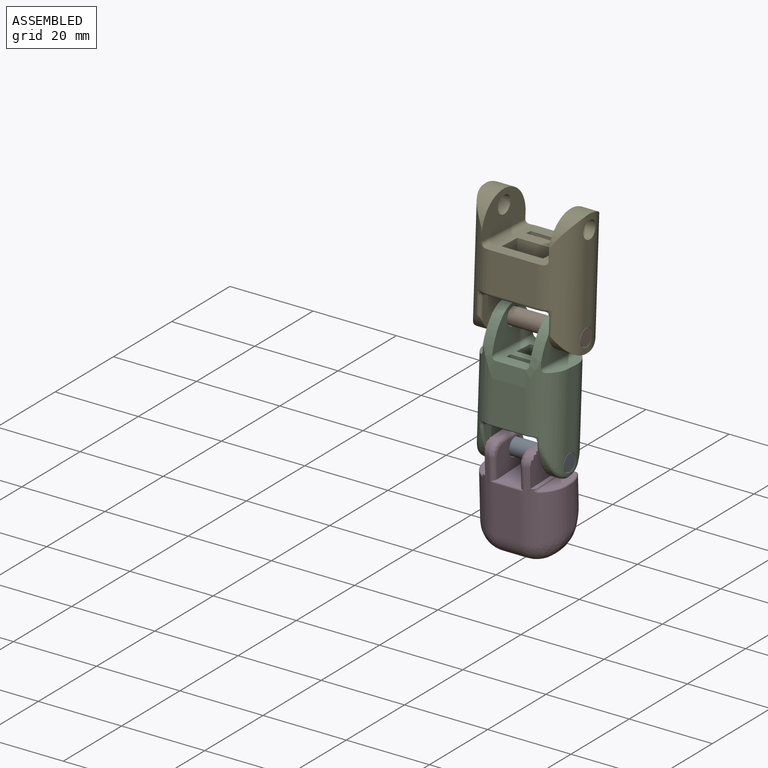
[diagram: assembled view]
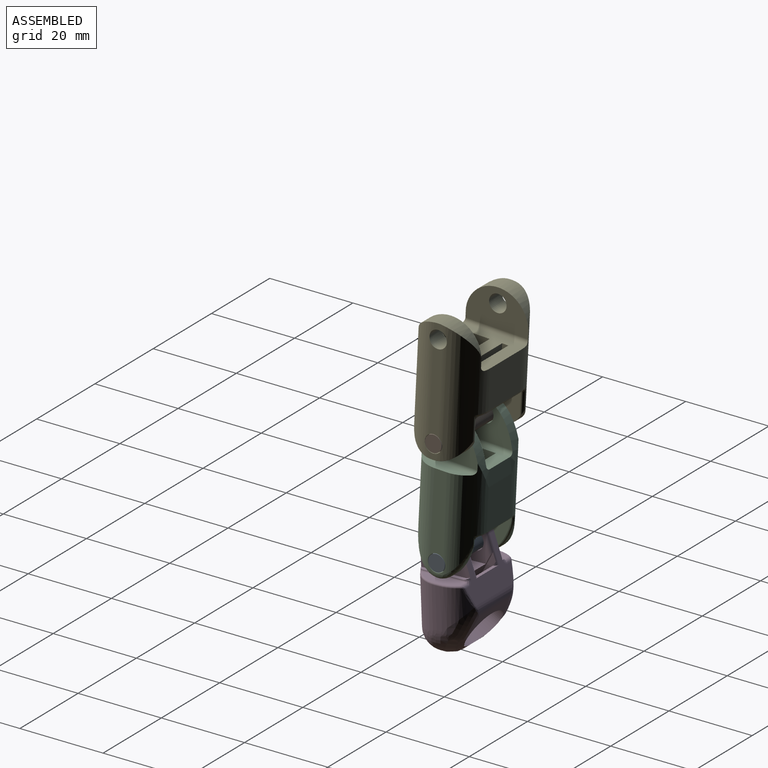
[diagram: assembled view, second angle]
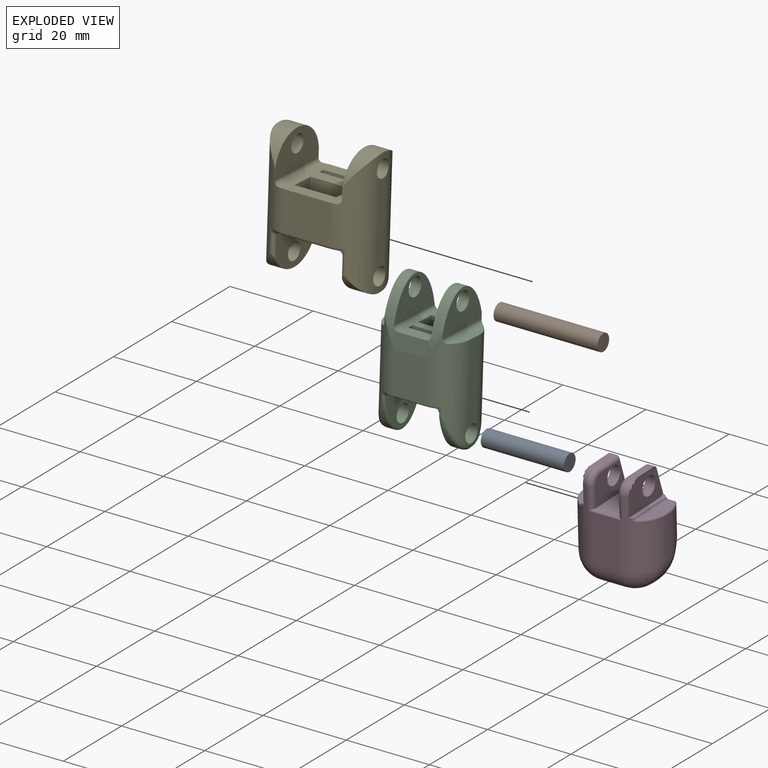
[diagram: exploded view]
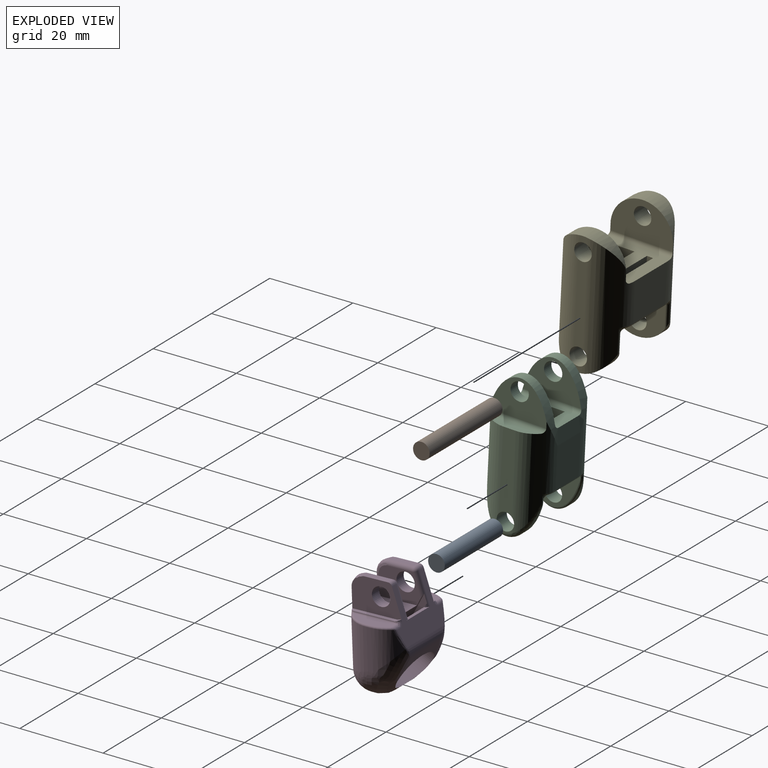
[diagram: exploded view, second angle]
ASSEMBLY  parts=5 mates=2
PART A: 3 faces, bbox 4x4x20 mm
  f0: plane 4x4mm, normal (0,0,-1), area 12.6mm2, adj f1
  f1: cylinder r=2mm len=20mm, axis (0,0,1), area 251.3mm2, adj f0,f2
  f2: plane 4x4mm, normal (0,0,1), area 12.6mm2, adj f1
PART B: 3 faces, bbox 4x4x25 mm
  f0: plane 4x4mm, normal (0,0,-1), area 12.6mm2, adj f1
  f1: cylinder r=2mm len=25mm, axis (0,0,1), area 314.2mm2, adj f0,f2
  f2: plane 4x4mm, normal (0,0,1), area 12.6mm2, adj f1
PART C: 79 faces, bbox 20.2x16.1x34.1 mm
  f0: plane 14x4.71mm, normal (1,0,0), area 65.9mm2, adj f12,f37,f62,f64
  f1: plane 14x1.5mm, normal (-1,0,0), area 21mm2, adj f12,f37,f61,f63
  f2: extruded ~15x14mm, area 201.5mm2, adj f3,f4,f5,f8,f9,f12,f50,f53
  f3: cylinder r=6mm len=25.07mm, axis (0,0,-1), area 162.5mm2, adj f2,f10,f13,f14,f16,f17,f46,f47
  f4: cylinder r=6mm len=25.07mm, axis (0,0,-1), area 162.5mm2, adj f2,f8,f10,f13,f14,f36,f38,f43
  f5: cylinder r=6mm len=25.07mm, axis (0,0,-1), area 162.5mm2, adj f2,f11,f20,f21,f27,f29,f30,f50
  f6: plane 14x1.5mm, normal (1,0,0), area 21mm2, adj f12,f37,f61,f63
  f7: plane 14x4.71mm, normal (-1,0,0), area 65.9mm2, adj f12,f37,f62,f64
  f8: plane 9.82x8mm, normal (0,-1,0), area 78.6mm2, adj f2,f4,f9,f39
  f9: cylinder r=6mm len=25.07mm, axis (0,0,-1), area 162.5mm2, adj f2,f8,f11,f20,f21,f23,f24,f40
  f10: plane 11.94x2mm, normal (0,0,1), area 18.4mm2, adj f3,f4,f14,f66
  f11: plane 11.94x2mm, normal (0,0,1), area 18.4mm2, adj f5,f9,f21,f65
  f12: plane 14.44x7mm, normal (0,0,1), area 62.6mm2, adj f0,f1,f2,f6,f7,f61,f62,f63
  f13: plane 3.1x1.13mm, normal (1,0,0), area 1.4mm2, adj f3,f4,f15,f55
  f14: plane 19.03x3mm, normal (1,0,0), area 55.8mm2, adj f3,f4,f10,f55
  f15: bspline ~4.02x1.48mm, area 5.9mm2, adj f13,f16,f32,f44
  f16: bspline ~9.08x5.66mm, area 10.3mm2, adj f3,f15,f18,f32
  f17: bspline ~0.58x0.3mm, area 0mm2, adj f3,f47,f48
  f18: bspline ~1.22x0.85mm, area 1mm2, adj f16,f19,f34,f46
  f19: plane 12.42x8.59mm, normal (-1,0,0), area 64.9mm2, adj f18,f34,f35,f36,f46,f55,f76
  f20: plane 3.1x1.13mm, normal (-1,0,0), area 1.4mm2, adj f5,f9,f22,f56
  f21: plane 19.03x3mm, normal (-1,0,0), area 55.8mm2, adj f5,f9,f11,f56
  f22: bspline ~4.02x1.48mm, area 5.9mm2, adj f20,f23,f29,f31
  f23: bspline ~9.07x5.65mm, area 10.3mm2, adj f9,f22,f25,f31
  f24: bspline ~0.58x0.3mm, area 0mm2, adj f9,f40,f41
  f25: bspline ~1.22x0.85mm, area 1mm2, adj f23,f26,f33,f42
  f26: plane 12.42x8.59mm, normal (1,0,0), area 64.9mm2, adj f25,f27,f28,f33,f42,f56,f71
  f27: cylinder r=0.46mm len=1.75mm, axis (0,0,1), area 0.7mm2, adj f5,f26,f28,f69,f70
  f28: bspline ~1.22x0.85mm, area 1mm2, adj f26,f27,f29,f33
  f29: bspline ~8.83x5.61mm, area 10.3mm2, adj f5,f22,f28,f31
  f30: bspline ~0.59x0.3mm, area 0mm2, adj f5,f51,f52
  f31: extruded ~13x7.59mm, area 24.6mm2, adj f22,f23,f29,f33
  f32: extruded ~13x7.59mm, area 24.6mm2, adj f15,f16,f34,f44
  f33: bspline ~13.15x7.94mm, area 15.1mm2, adj f25,f26,f28,f31
  f34: bspline ~13.15x7.94mm, area 15.1mm2, adj f18,f19,f32,f35
  f35: bspline ~1.22x0.85mm, area 1mm2, adj f19,f34,f36,f44
  f36: cylinder r=0.46mm len=1.75mm, axis (0,0,1), area 0.7mm2, adj f4,f19,f35,f74,f75
  f37: plane 14.08x11.27mm, normal (0,0,-1), area 116.1mm2, adj f0,f1,f6,f7,f38,f39,f40,f47
  f38: torus R=5.54mm, axis (0,0,-1), area 1.7mm2, adj f4,f37,f39,f43,f45,f74
  f39: cylinder r=0.46mm len=8mm, axis (1,0,0), area 5.8mm2, adj f8,f37,f38,f40
  f40: torus R=5.54mm, axis (0,0,-1), area 1.7mm2, adj f9,f24,f37,f39,f41,f73
  f41: plane 0.51x0.04mm, normal (-1,0,0), area 0mm2, adj f9,f24,f40
  f42: cylinder r=0.46mm len=1.75mm, axis (0,0,-1), area 0.7mm2, adj f9,f25,f26,f72,f73
  f43: plane 0.51x0.04mm, normal (1,0,0), area 0mm2, adj f4,f38,f45
  f44: bspline ~9.12x5.66mm, area 10.3mm2, adj f4,f15,f32,f35
  f45: bspline ~0.59x0.3mm, area 0mm2, adj f4,f38,f43
  f46: cylinder r=0.46mm len=1.75mm, axis (0,0,-1), area 0.7mm2, adj f3,f18,f19,f77,f78
  f47: torus R=5.54mm, axis (0,0,-1), area 1.7mm2, adj f3,f17,f37,f48,f49,f78
  f48: plane 0.51x0.04mm, normal (1,0,0), area 0mm2, adj f3,f17,f47
  f49: cylinder r=0.46mm len=8mm, axis (-1,0,0), area 5.8mm2, adj f37,f47,f50,f51
  f50: plane 9.82x8mm, normal (0,1,0), area 78.6mm2, adj f2,f3,f5,f49
  f51: torus R=5.54mm, axis (0,0,-1), area 1.7mm2, adj f5,f30,f37,f49,f52,f69
  f52: plane 0.51x0.04mm, normal (-1,0,0), area 0mm2, adj f5,f30,f51
  f53: plane 14.17x9.03mm, normal (1,0,0), area 76.7mm2, adj f2,f59,f68
  f54: plane 14.08x8.99mm, normal (-1,0,0), area 76mm2, adj f2,f60,f67
  f55: cylinder r=2.1mm len=4.2mm, axis (-1,0,0), area 46.2mm2, adj f3,f4,f13,f14,f19
  f56: cylinder r=2.1mm len=4.2mm, axis (1,0,0), area 46.2mm2, adj f5,f9,f20,f21,f26
  f57: plane 13.39x8.99mm, normal (-1,0,0), area 76.4mm2, adj f2,f5,f9,f59,f65
  f58: plane 13.39x8.99mm, normal (1,0,0), area 76.4mm2, adj f2,f3,f4,f60,f66
  f59: cylinder r=2.2mm len=4.4mm, axis (1,0,0), area 34.6mm2, adj f53,f57
  f60: cylinder r=2.2mm len=4.4mm, axis (-1,0,0), area 34.6mm2, adj f54,f58
  f61: plane 14x6.2mm, normal (0,-1,0), area 86.8mm2, adj f1,f6,f12,f37
  f62: plane 14x6.2mm, normal (0,1,0), area 86.8mm2, adj f0,f7,f12,f37
  f63: plane 14x6.2mm, normal (0,1,0), area 86.8mm2, adj f1,f6,f12,f37
  f64: plane 14x6.2mm, normal (0,-1,0), area 86.8mm2, adj f0,f7,f12,f37
  f65: cylinder r=1mm len=13.39mm, axis (0,-1,0), area 19.9mm2, adj f5,f9,f11,f57
  f66: cylinder r=1mm len=13.39mm, axis (0,-1,0), area 19.9mm2, adj f3,f4,f10,f58
  f67: cylinder r=1mm len=14.44mm, axis (0,1,0), area 22.4mm2, adj f2,f12,f54
  f68: cylinder r=1mm len=14.44mm, axis (0,-1,0), area 22.4mm2, adj f2,f12,f53
  f69: bspline ~1.61x1.46mm, area 0.6mm2, adj f27,f51,f70
  f70: torus R=1.46mm, axis (0,0,-1), area 0.6mm2, adj f27,f37,f69,f71
  f71: cylinder r=1mm len=12.37mm, axis (0,1,0), area 19.4mm2, adj f26,f37,f70,f72
  f72: torus R=1.46mm, axis (0,0,-1), area 0.6mm2, adj f37,f42,f71,f73
  f73: bspline ~1.57x1.46mm, area 0.5mm2, adj f40,f42,f72
  f74: bspline ~1.57x1.46mm, area 0.6mm2, adj f36,f38,f75
  f75: torus R=1.46mm, axis (0,0,-1), area 0.6mm2, adj f36,f37,f74,f76
  f76: cylinder r=1mm len=12.37mm, axis (0,-1,0), area 19.4mm2, adj f19,f37,f75,f77
  f77: torus R=1.46mm, axis (0,0,-1), area 0.6mm2, adj f37,f46,f76,f78
  f78: bspline ~1.61x1.46mm, area 0.5mm2, adj f46,f47,f77
PART D: 95 faces, bbox 22.3x16.3x26.9 mm
  f0: torus R=4mm, axis (0,0,-1), area 8mm2, adj f1,f63,f68,f91
  f1: cylinder r=7mm len=17mm, axis (0,0,-1), area 127.1mm2, adj f0,f20,f21,f23,f25,f43,f44,f69
  f2: plane 15.81x12.47mm, normal (0,0.95,0.3), area 89.4mm2, adj f3,f4,f15,f17,f18,f35,f36,f55
  f3: bspline ~1.84x1.6mm, area 1.8mm2, adj f2,f72,f73,f88
  f4: cylinder r=1mm len=7.6mm, axis (0,0.3,-0.95), area 9.7mm2, adj f2,f10,f11,f15,f66,f70,f87
  f5: plane 9.89x7.01mm, normal (1,0,0), area 47.8mm2, adj f16,f45,f75,f76,f77,f83,f94
  f6: plane 6x1.1mm, normal (0,0,-1), area 6.6mm2, adj f7,f24,f26,f49
  f7: cylinder r=4mm len=6mm, axis (1,0,0), area 18.2mm2, adj f6,f8,f9,f27
  f8: extruded ~11.96x10.54mm, area 195.1mm2, adj f7,f9,f10,f11,f12,f27,f32,f33
  f9: bspline ~7.78x7.37mm, area 38.9mm2, adj f7,f8,f33,f34,f49,f51
  f10: plane 9.36x5.52mm, normal (-1,0,0), area 13.8mm2, adj f4,f8,f11,f82,f83,f86,f87
  f11: plane 7.5x7.07mm, normal (0,-0.87,0.49), area 50.6mm2, adj f4,f8,f10,f12,f15,f77
  f12: plane 9.37x5.52mm, normal (1,0,0), area 13.8mm2, adj f8,f11,f77,f81,f83
  f13: plane 10.12x2.71mm, normal (0,0,1), area 21.6mm2, adj f17,f19,f41,f42,f44
  f14: plane 10.11x2.71mm, normal (0,0,1), area 21.6mm2, adj f58,f59,f60,f72,f73
  f15: plane 8.1x0.89mm, normal (0,0,1), area 5.2mm2, adj f2,f4,f11,f77
  f16: plane 9.61x6.5mm, normal (0,0,1), area 57.7mm2, adj f5,f21,f22,f45,f46,f69,f70,f83
  f17: cylinder r=1mm len=1.51mm, axis (-1,0,0), area 1.5mm2, adj f2,f13,f18,f39,f40
  f18: bspline ~1.84x1.6mm, area 2mm2, adj f2,f17,f19,f92
  f19: cylinder r=0.42mm len=10.32mm, axis (0,-1,0), area 6.7mm2, adj f13,f18,f20,f90
  f20: bspline ~1.82x1.29mm, area 1mm2, adj f1,f19,f44,f90
  f21: torus R=6.58mm, axis (0,0,-1), area 0.5mm2, adj f1,f16,f22,f69
  f22: cylinder r=0.42mm len=6mm, axis (-1,0,0), area 4mm2, adj f16,f21,f23,f46
  f23: plane 11.58x6mm, normal (0,-1,0), area 69.5mm2, adj f1,f22,f24,f47
  f24: cylinder r=5mm len=6mm, axis (-1,0,0), area 47.1mm2, adj f6,f23,f25,f48
  f25: bspline ~10.75x7.53mm, area 47.5mm2, adj f1,f24,f26
  f26: cylinder r=7mm len=7mm, axis (0,-1,0), area 12.5mm2, adj f6,f25,f27,f29,f43
  f27: bspline ~7.78x7.37mm, area 38.9mm2, adj f7,f8,f26,f28,f32,f33
  f28: bspline ~4.13x3.79mm, area 2.5mm2, adj f27,f29,f31,f33
  f29: sphere r=7mm, area 0.1mm2, adj f26,f28,f30
  f30: cylinder r=7mm len=9.58mm, axis (0,0,-1), area 43.6mm2, adj f29,f31,f36,f37,f40,f41,f43
  f31: bspline ~9x6.63mm, area 30.8mm2, adj f28,f30,f33,f38
  f32: cylinder r=36.41mm len=1.31mm, axis (1,0,0), area 0mm2, adj f8,f27
  f33: cylinder r=36.41mm len=12mm, axis (1,0,0), area 26.3mm2, adj f8,f9,f27,f28,f31,f35,f51,f52
  f34: cylinder r=36.41mm len=1.31mm, axis (1,0,0), area 0mm2, adj f8,f9
  f35: cylinder r=4mm len=12.53mm, axis (-1,0,0), area 31.7mm2, adj f2,f33,f37,f38,f54,f79
  f36: bspline ~5.07x2.41mm, area 3.8mm2, adj f2,f30,f37,f39
  f37: cylinder r=1mm len=0.55mm, axis (0.42,-0.27,0.87), area 0mm2, adj f30,f35,f36,f38
  f38: bspline ~3x1.82mm, area 1mm2, adj f31,f35,f37
  f39: bspline ~1.11x1mm, area 0.3mm2, adj f17,f36,f40
  f40: bspline ~0.64x0.57mm, area 0.2mm2, adj f17,f30,f39,f41
  f41: torus R=6.58mm, axis (0,0,-1), area 2.8mm2, adj f13,f30,f40,f42
  f42: cylinder r=0.42mm len=1mm, axis (0,1,0), area 0.7mm2, adj f13,f41,f43,f44
  f43: plane 9.58x1mm, normal (1,0,0), area 9.6mm2, adj f1,f26,f30,f42
  f44: torus R=6.58mm, axis (0,0,-1), area 4.3mm2, adj f1,f13,f20,f42
  f45: cylinder r=1mm len=5.42mm, axis (0,0,1), area 8.9mm2, adj f5,f16,f46,f47,f76
  f46: torus R=6.58mm, axis (0,0,-1), area 0.5mm2, adj f16,f22,f45,f47
  f47: cylinder r=7mm len=17mm, axis (0,0,-1), area 127.1mm2, adj f23,f45,f46,f48,f60,f61,f62,f78
  f48: bspline ~10.75x7.53mm, area 47.5mm2, adj f24,f47,f49
  f49: cylinder r=7mm len=7mm, axis (0,-1,0), area 12.5mm2, adj f6,f9,f48,f50,f78
  f50: sphere r=7mm, area 0.1mm2, adj f49,f51,f53
  f51: bspline ~4.13x3.79mm, area 2.5mm2, adj f9,f33,f50,f52
  f52: bspline ~9x6.63mm, area 30.8mm2, adj f33,f51,f53,f79
  f53: cylinder r=7mm len=9.58mm, axis (0,0,-1), area 43.6mm2, adj f50,f52,f54,f55,f57,f58,f78
  f54: cylinder r=1mm len=0.56mm, axis (-0.41,-0.27,0.87), area 0mm2, adj f35,f53,f55,f79
  f55: bspline ~5.08x2.41mm, area 3.8mm2, adj f2,f53,f54,f56
  f56: bspline ~1.11x1mm, area 0.3mm2, adj f55,f57,f73
  f57: bspline ~0.64x0.57mm, area 0.2mm2, adj f53,f56,f58,f73
  f58: torus R=6.58mm, axis (0,0,-1), area 2.8mm2, adj f14,f53,f57,f59
  f59: cylinder r=0.42mm len=1mm, axis (0,-1,0), area 0.7mm2, adj f14,f58,f60,f78
  f60: torus R=6.58mm, axis (0,0,-1), area 4.3mm2, adj f14,f47,f59,f61
  f61: bspline ~1.82x1.29mm, area 1.2mm2, adj f47,f60,f72,f88
  f62: torus R=4mm, axis (0,0,-1), area 8mm2, adj f47,f64,f76,f89
  f63: plane 6.16x1.45mm, normal (0,0,1), area 8.5mm2, adj f0,f65,f67,f91
  f64: plane 6.16x1.45mm, normal (0,0,1), area 8.5mm2, adj f62,f71,f75,f89
  f65: cylinder r=1mm len=1.45mm, axis (-1,0,0), area 1.8mm2, adj f2,f63,f66,f91
  f66: sphere r=1mm, area 1.3mm2, adj f4,f65,f67
  f67: cylinder r=1mm len=6.16mm, axis (0,-1,0), area 9.7mm2, adj f63,f66,f68,f70
  f68: bspline ~3.22x3.18mm, area 7mm2, adj f0,f67,f69,f70
  f69: cylinder r=1mm len=5.42mm, axis (0,0,-1), area 8.9mm2, adj f1,f16,f21,f68,f70
  f70: plane 9.89x7.01mm, normal (-1,0,0), area 47.8mm2, adj f4,f16,f67,f68,f69,f83,f86,f87
  f71: cylinder r=1mm len=1.45mm, axis (-1,0,0), area 1.8mm2, adj f2,f64,f74,f89
  f72: cylinder r=0.42mm len=10.27mm, axis (0,1,0), area 6.6mm2, adj f3,f14,f61,f88
  f73: cylinder r=1mm len=1.51mm, axis (-1,0,0), area 1.5mm2, adj f2,f3,f14,f56,f57
  f74: sphere r=1mm, area 1.3mm2, adj f71,f75,f77
  f75: cylinder r=1mm len=6.16mm, axis (0,1,0), area 9.7mm2, adj f5,f64,f74,f76
  f76: bspline ~3.22x3.18mm, area 7mm2, adj f5,f45,f62,f75
  f77: cylinder r=1mm len=7.6mm, axis (0,-0.3,0.95), area 9.7mm2, adj f2,f5,f11,f12,f15,f74,f83
  f78: plane 9.58x1mm, normal (-1,0,0), area 9.6mm2, adj f47,f49,f53,f59
  f79: bspline ~3x1.82mm, area 1mm2, adj f35,f52,f54
  f80: extruded ~11.96x4.2mm, area 16.2mm2, adj f8,f81,f82,f83
  f81: extruded ~3.5x2.57mm, area 4.4mm2, adj f8,f12,f80,f83
  f82: extruded ~3.5x2.57mm, area 4.4mm2, adj f8,f10,f80,f83
  f83: plane 15.48x12.09mm, normal (0,0.87,-0.49), area 123.9mm2, adj f5,f10,f12,f16,f70,f77,f80,f81
  f84: cylinder r=0.85mm len=3.05mm, axis (0,0.87,-0.49), area 13.6mm2, adj f83,f85
  f85: plane 1.7x1.48mm, normal (0,0.87,-0.49), area 2.3mm2, adj f84
  f86: plane 0.5x0.01mm, normal (0,0.48,0.87), area 0mm2, adj f10,f70,f83,f87
  f87: plane 1.96x1.19mm, normal (0,0.86,-0.5), area 0.9mm2, adj f4,f10,f70,f86
  f88: plane 12.27x1.32mm, normal (0,0,1), area 11.5mm2, adj f2,f3,f47,f61,f72,f89
  f89: plane 13.08x8.7mm, normal (-1,0,0), area 64.2mm2, adj f2,f47,f62,f64,f71,f88,f94
  f90: plane 10.91x1mm, normal (0,0,1), area 10.6mm2, adj f1,f19,f20,f91,f92
  f91: plane 12.98x8.7mm, normal (1,0,0), area 64mm2, adj f0,f1,f2,f63,f65,f90,f92,f93
  f92: plane 1.05x1.01mm, normal (0,-0.3,0.95), area 0.8mm2, adj f18,f90,f91
  f93: cylinder r=2.2mm len=4.4mm, axis (-1,0,0), area 33.9mm2, adj f70,f91
  f94: cylinder r=2.2mm len=4.4mm, axis (-1,0,0), area 33.9mm2, adj f5,f89
PART E: 59 faces, bbox 25x17.2x30 mm
  f0: plane 11x9.3mm, normal (0,-1,0), area 102.3mm2, adj f1,f13,f19,f27
  f1: plane 16x14.1mm, normal (0,0,1), area 155.2mm2, adj f0,f10,f13,f19,f21,f32,f39,f40
  f2: plane 15.04x9mm, normal (-1,0,0), area 97.5mm2, adj f10,f11,f13,f36,f58
  f3: plane 2x1.65mm, normal (1,0,0), area 2.9mm2, adj f6,f10,f13,f37
  f4: plane 19.31x2mm, normal (1,0,0), area 37.9mm2, adj f10,f13,f36,f37
  f5: plane 2x1.65mm, normal (1,0,0), area 2.9mm2, adj f10,f11,f13,f36
  f6: cylinder r=7.55mm len=14.19mm, axis (1,0,0), area 52.7mm2, adj f3,f8,f9,f10,f13,f34
  f7: cylinder r=7.55mm len=14.19mm, axis (1,0,0), area 42.9mm2, adj f17,f18,f22,f23,f24,f25
  f8: cylinder r=0.7mm len=7.16mm, axis (0,0,-1), area 7.4mm2, adj f6,f9,f13,f52,f53
  f9: plane 12.79x9mm, normal (-1,0,0), area 88mm2, adj f6,f8,f34,f37,f54
  f10: cylinder r=7mm len=29.87mm, axis (0,0,-1), area 226mm2, adj f1,f2,f3,f4,f5,f6,f11,f32
  f11: cylinder r=7.55mm len=15.04mm, axis (-1,0,0), area 58mm2, adj f2,f5,f10,f13
  f12: cylinder r=7.55mm len=15.04mm, axis (-1,0,0), area 58mm2, adj f16,f19,f20,f21
  f13: cylinder r=7mm len=29.87mm, axis (0,0,-1), area 226mm2, adj f0,f1,f2,f3,f4,f5,f6,f8
  f14: plane 2x0.95mm, normal (-1,0,0), area 1.5mm2, adj f17,f19,f21,f38
  f15: plane 19.31x2mm, normal (-1,0,0), area 37.9mm2, adj f19,f21,f35,f38
  f16: plane 2x1.65mm, normal (-1,0,0), area 2.9mm2, adj f12,f19,f21,f35
  f17: torus R=6.85mm, axis (1,0,0), area 2.4mm2, adj f7,f14,f18,f22
  f18: bspline ~6.35x5.26mm, area 7.3mm2, adj f7,f17,f19,f25
  f19: cylinder r=7mm len=29.16mm, axis (0,0,-1), area 221.7mm2, adj f0,f1,f12,f14,f15,f16,f18,f20
  f20: plane 15.04x9mm, normal (1,0,0), area 97.5mm2, adj f12,f19,f21,f35,f57
  f21: cylinder r=7mm len=29.16mm, axis (0,0,-1), area 221.7mm2, adj f1,f12,f14,f15,f16,f20,f22,f23
  f22: bspline ~6.35x5.26mm, area 7.3mm2, adj f7,f17,f21,f23
  f23: cylinder r=0.7mm len=7.16mm, axis (0,0,-1), area 7.3mm2, adj f7,f21,f22,f24,f47,f48
  f24: plane 12.79x9mm, normal (1,0,0), area 88mm2, adj f7,f23,f25,f38,f49
  f25: cylinder r=0.7mm len=7.16mm, axis (0,0,1), area 7.3mm2, adj f7,f18,f19,f24,f50,f51
  f26: torus R=6.3mm, axis (0,0,-1), area 3mm2, adj f19,f27,f29,f51
  f27: cylinder r=0.7mm len=11mm, axis (1,0,0), area 12.1mm2, adj f0,f26,f28,f29
  f28: torus R=6.3mm, axis (0,0,-1), area 3mm2, adj f13,f27,f29,f52
  f29: plane 14.6x14.38mm, normal (0,0,-1), area 135.6mm2, adj f26,f27,f28,f30,f31,f33,f39,f40
  f30: torus R=6.3mm, axis (0,0,-1), area 3mm2, adj f21,f29,f31,f47
  f31: cylinder r=0.7mm len=11mm, axis (-1,0,0), area 12.1mm2, adj f29,f30,f32,f33
  f32: plane 11x9.3mm, normal (0,1,0), area 102.3mm2, adj f1,f10,f21,f31
  f33: torus R=6.3mm, axis (0,0,-1), area 3mm2, adj f10,f29,f31,f56
  f34: cylinder r=0.7mm len=7.16mm, axis (0,0,1), area 7.4mm2, adj f6,f9,f10,f55,f56
  f35: cylinder r=2.1mm len=4.45mm, axis (1,0,0), area 58.7mm2, adj f15,f16,f19,f20,f21
  f36: cylinder r=2.1mm len=4.45mm, axis (-1,0,0), area 58.7mm2, adj f2,f4,f5,f10,f13
  f37: cylinder r=2.1mm len=4.45mm, axis (-1,0,0), area 58.7mm2, adj f3,f4,f9,f10,f13
  f38: cylinder r=2.1mm len=4.45mm, axis (1,0,0), area 58.7mm2, adj f14,f15,f19,f21,f24
  f39: plane 10x10mm, normal (0,-1,0), area 100mm2, adj f1,f29,f40,f46
  f40: plane 10x1.5mm, normal (-1,0,0), area 15mm2, adj f1,f29,f39,f41
  f41: plane 10x10mm, normal (0,1,0), area 100mm2, adj f1,f29,f40,f46
  f42: plane 10x5.5mm, normal (-1,0,0), area 55mm2, adj f1,f29,f43,f45
  f43: plane 10x10mm, normal (0,1,0), area 100mm2, adj f1,f29,f42,f44
  f44: plane 10x5.5mm, normal (1,0,0), area 55mm2, adj f1,f29,f43,f45
  f45: plane 10x10mm, normal (0,-1,0), area 100mm2, adj f1,f29,f42,f44
  f46: plane 10x1.5mm, normal (1,0,0), area 15mm2, adj f1,f29,f39,f41
  f47: bspline ~1.97x1.7mm, area 0.8mm2, adj f23,f30,f48
  f48: torus R=1.7mm, axis (0,0,-1), area 0.7mm2, adj f23,f29,f47,f49
  f49: cylinder r=1mm len=12.79mm, axis (0,1,0), area 20.1mm2, adj f24,f29,f48,f50
  f50: torus R=1.7mm, axis (0,0,-1), area 0.7mm2, adj f25,f29,f49,f51
  f51: bspline ~1.97x1.7mm, area 0.8mm2, adj f25,f26,f50
  f52: bspline ~1.92x1.7mm, area 0.8mm2, adj f8,f28,f53
  f53: torus R=1.7mm, axis (0,0,-1), area 0.7mm2, adj f8,f29,f52,f54
  f54: cylinder r=1mm len=12.79mm, axis (0,-1,0), area 20.1mm2, adj f9,f29,f53,f55
  f55: torus R=1.7mm, axis (0,0,-1), area 0.7mm2, adj f29,f34,f54,f56
  f56: bspline ~1.97x1.7mm, area 0.8mm2, adj f33,f34,f55
  f57: cylinder r=1mm len=15.65mm, axis (0,1,0), area 24.1mm2, adj f1,f19,f20,f21
  f58: cylinder r=1mm len=15.65mm, axis (0,-1,0), area 24.1mm2, adj f1,f2,f10,f13
PLACE A rot(axis=(0.57,-0.6,-0.57),118.4deg) t=(9.95,31.1,-5.32)mm
PLACE B rot(axis=(0.57,-0.6,-0.57),118.4deg) t=(13,32.46,22.15)mm
PLACE C rot(axis=(-1,0,0),2.8deg) t=(-0.05,23.43,-8.45)mm
PLACE D rot(axis=(1,0,0),2.2deg) t=(-0.1,24.41,-27.09)mm
PLACE E rot(axis=(-1,0,0),2.8deg) t=(0.5,24.29,19.05)mm
MATE fastened A.f1 <-> C.f55  axis (-1,0,0) through (-10.05,31.1,-5.32)mm
MATE fastened B.f1 <-> E.f37  axis (-1,0,0) through (-12,32.46,22.15)mm
